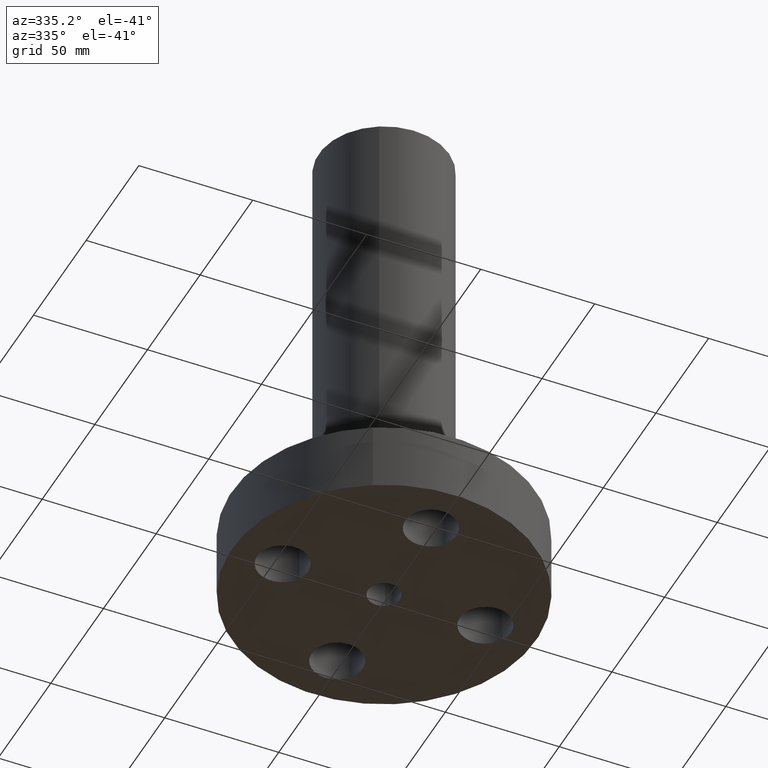
[diagram: clean part render]
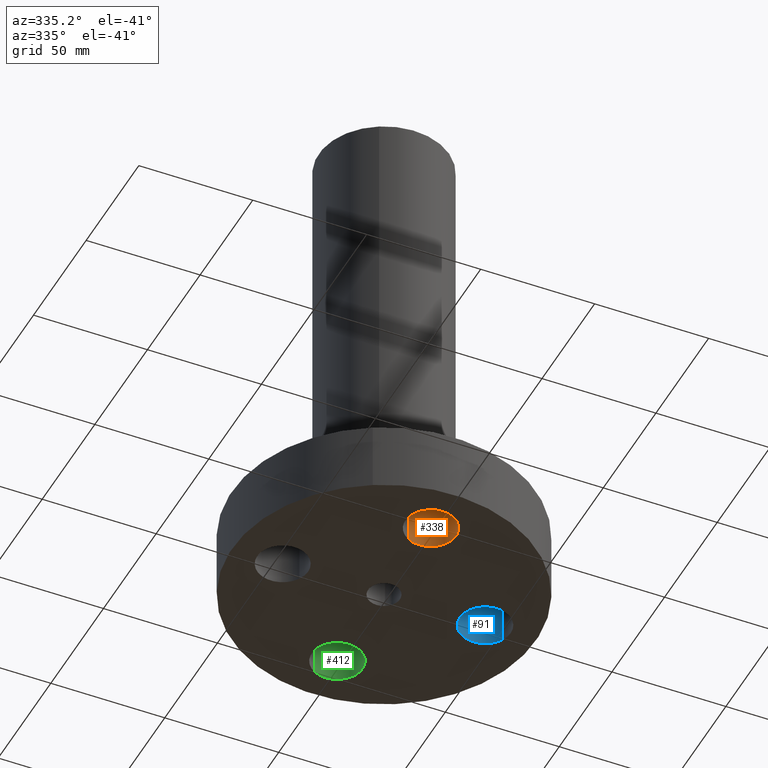
[diagram: same view with three faces highlighted in distinct colors, each labeled with its STEP entity id]
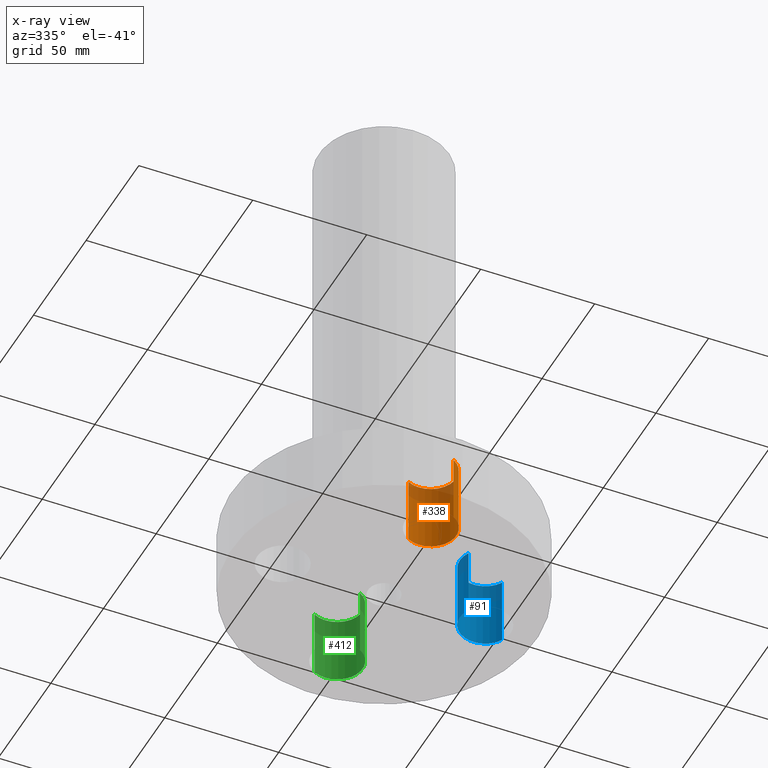
[diagram: x-ray of the same camera — body ghosted, the three highlighted faces saturated]
A machine part, auxiliary view with three faces highlighted in distinct colors.
The next image is the same camera in x-ray (body ghosted, the three faces saturated) — at least one of them is partly hidden behind the body in this view.
Their STEP definitions:

[orange] entity #338 — the highlighted cylindrical surface (edge-blend (fillet) strip) has radius 11.176 mm, axis along (-0, 0, 1).
#139=AXIS2_PLACEMENT_3D('Circle Axis2P3D',#137,#138,$) ;
#299=AXIS2_PLACEMENT_3D('Cylinder Axis2P3D',#296,#297,#298) ;
#329=AXIS2_PLACEMENT_3D('Circle Axis2P3D',#327,#328,$) ;
#137=CARTESIAN_POINT('Axis2P3D Location',(-3.84644197508E-016,-1.75000000001,1.19)) ;
#141=CARTESIAN_POINT('Vertex',(-0.210947236987,-1.36386367277,1.19)) ;
#143=CARTESIAN_POINT('Vertex',(0.210947236987,-2.13613632724,1.19)) ;
#296=CARTESIAN_POINT('Axis2P3D Location',(-1.72584639625E-016,-1.75000000001,0.00393700787402)) ;
#301=CARTESIAN_POINT('Line Origine',(-0.210947236987,-1.36386367277,0.595000000002)) ;
#305=CARTESIAN_POINT('Vertex',(-0.210947236987,-1.36386367277,2.2401153548E-016)) ;
#308=CARTESIAN_POINT('Line Origine',(0.210947236987,-2.13613632724,0.595000000002)) ;
#312=CARTESIAN_POINT('Vertex',(0.210947236987,-2.13613632724,2.2401153548E-016)) ;
#327=CARTESIAN_POINT('Axis2P3D Location',(-1.72584639625E-016,-1.75000000001,0.)) ;
#138=DIRECTION('Axis2P3D Direction',(0.,0.,-0.0393700787402)) ;
#297=DIRECTION('Axis2P3D Direction',(-0.,0.,0.0393700787402)) ;
#298=DIRECTION('Axis2P3D XDirection',(0.0188750212049,-0.0345504945626,0.)) ;
#302=DIRECTION('Vector Direction',(0.,0.,0.0393700787402)) ;
#309=DIRECTION('Vector Direction',(0.,0.,0.0393700787402)) ;
#328=DIRECTION('Axis2P3D Direction',(-0.,0.,0.0393700787402)) ;
#303=VECTOR('Line Direction',#302,0.0393700787402) ;
#310=VECTOR('Line Direction',#309,0.0393700787402) ;
#333=ORIENTED_EDGE('',*,*,#314,.F.) ;
#334=ORIENTED_EDGE('',*,*,#145,.F.) ;
#335=ORIENTED_EDGE('',*,*,#307,.T.) ;
#336=ORIENTED_EDGE('',*,*,#331,.T.) ;
#338=ADVANCED_FACE('PartBody',(#337),#300,.F.) ;
#140=CIRCLE('generated circle',#139,0.440000000002) ;
#330=CIRCLE('generated circle',#329,0.440000000002) ;
#300=CYLINDRICAL_SURFACE('generated cylinder',#299,0.440000000002) ;
#145=EDGE_CURVE('',#142,#144,#140,.T.) ;
#307=EDGE_CURVE('',#142,#306,#304,.F.) ;
#314=EDGE_CURVE('',#144,#313,#311,.F.) ;
#331=EDGE_CURVE('',#306,#313,#330,.F.) ;
#332=EDGE_LOOP('',(#333,#334,#335,#336)) ;
#337=FACE_OUTER_BOUND('',#332,.T.) ;
#304=LINE('Line',#301,#303) ;
#311=LINE('Line',#308,#310) ;
#142=VERTEX_POINT('',#141) ;
#144=VERTEX_POINT('',#143) ;
#306=VERTEX_POINT('',#305) ;
#313=VERTEX_POINT('',#312) ;

[blue] entity #91 — the highlighted cylindrical surface (edge-blend (fillet) strip) has radius 11.176 mm, axis along (0, -0, 1).
#38=AXIS2_PLACEMENT_3D('Cylinder Axis2P3D',#35,#36,#37) ;
#77=AXIS2_PLACEMENT_3D('Circle Axis2P3D',#75,#76,$) ;
#82=AXIS2_PLACEMENT_3D('Circle Axis2P3D',#80,#81,$) ;
#35=CARTESIAN_POINT('Axis2P3D Location',(1.75000000001,0.,0.00393700787402)) ;
#40=CARTESIAN_POINT('Line Origine',(1.36386367277,-0.210947236987,0.595000000002)) ;
#44=CARTESIAN_POINT('Vertex',(1.36386367277,-0.210947236987,1.19)) ;
#46=CARTESIAN_POINT('Vertex',(1.36386367277,-0.210947236987,2.2401153548E-016)) ;
#53=CARTESIAN_POINT('Vertex',(2.13613632724,0.210947236987,1.19)) ;
#56=CARTESIAN_POINT('Line Origine',(2.13613632724,0.210947236987,0.595000000002)) ;
#60=CARTESIAN_POINT('Vertex',(2.13613632724,0.210947236987,2.2401153548E-016)) ;
#75=CARTESIAN_POINT('Axis2P3D Location',(1.75000000001,0.,1.19)) ;
#80=CARTESIAN_POINT('Axis2P3D Location',(1.75000000001,0.,0.)) ;
#36=DIRECTION('Axis2P3D Direction',(0.,-0.,0.0393700787402)) ;
#37=DIRECTION('Axis2P3D XDirection',(0.0345504945626,0.0188750212049,0.)) ;
#41=DIRECTION('Vector Direction',(0.,0.,0.0393700787402)) ;
#57=DIRECTION('Vector Direction',(0.,0.,0.0393700787402)) ;
#76=DIRECTION('Axis2P3D Direction',(0.,-0.,0.0393700787402)) ;
#81=DIRECTION('Axis2P3D Direction',(0.,-0.,0.0393700787402)) ;
#42=VECTOR('Line Direction',#41,0.0393700787402) ;
#58=VECTOR('Line Direction',#57,0.0393700787402) ;
#86=ORIENTED_EDGE('',*,*,#62,.F.) ;
#87=ORIENTED_EDGE('',*,*,#79,.F.) ;
#88=ORIENTED_EDGE('',*,*,#48,.T.) ;
#89=ORIENTED_EDGE('',*,*,#84,.T.) ;
#91=ADVANCED_FACE('PartBody',(#90),#39,.F.) ;
#78=CIRCLE('generated circle',#77,0.440000000002) ;
#83=CIRCLE('generated circle',#82,0.440000000002) ;
#39=CYLINDRICAL_SURFACE('generated cylinder',#38,0.440000000002) ;
#48=EDGE_CURVE('',#45,#47,#43,.F.) ;
#62=EDGE_CURVE('',#54,#61,#59,.F.) ;
#79=EDGE_CURVE('',#45,#54,#78,.F.) ;
#84=EDGE_CURVE('',#47,#61,#83,.F.) ;
#85=EDGE_LOOP('',(#86,#87,#88,#89)) ;
#90=FACE_OUTER_BOUND('',#85,.T.) ;
#43=LINE('Line',#40,#42) ;
#59=LINE('Line',#56,#58) ;
#45=VERTEX_POINT('',#44) ;
#47=VERTEX_POINT('',#46) ;
#54=VERTEX_POINT('',#53) ;
#61=VERTEX_POINT('',#60) ;

[green] entity #412 — the highlighted cylindrical surface (edge-blend (fillet) strip) has radius 11.176 mm, axis along (0, 0, 1).
#184=AXIS2_PLACEMENT_3D('Circle Axis2P3D',#182,#183,$) ;
#385=AXIS2_PLACEMENT_3D('Cylinder Axis2P3D',#382,#383,#384) ;
#403=AXIS2_PLACEMENT_3D('Circle Axis2P3D',#401,#402,$) ;
#177=CARTESIAN_POINT('Vertex',(0.210947236987,1.36386367277,1.19)) ;
#179=CARTESIAN_POINT('Vertex',(-0.210947236987,2.13613632724,1.19)) ;
#182=CARTESIAN_POINT('Axis2P3D Location',(-4.89547160465E-016,1.75000000001,1.19)) ;
#382=CARTESIAN_POINT('Axis2P3D Location',(-3.21469784777E-016,1.75000000001,0.00393700787402)) ;
#387=CARTESIAN_POINT('Line Origine',(0.210947236987,1.36386367277,0.595000000002)) ;
#391=CARTESIAN_POINT('Vertex',(0.210947236987,1.36386367277,2.2401153548E-016)) ;
#394=CARTESIAN_POINT('Line Origine',(-0.210947236987,2.13613632724,0.595000000002)) ;
#398=CARTESIAN_POINT('Vertex',(-0.210947236987,2.13613632724,2.2401153548E-016)) ;
#401=CARTESIAN_POINT('Axis2P3D Location',(-3.21469784777E-016,1.75000000001,0.)) ;
#183=DIRECTION('Axis2P3D Direction',(0.,0.,-0.0393700787402)) ;
#383=DIRECTION('Axis2P3D Direction',(0.,0.,0.0393700787402)) ;
#384=DIRECTION('Axis2P3D XDirection',(-0.0188750212049,0.0345504945626,0.)) ;
#388=DIRECTION('Vector Direction',(0.,0.,0.0393700787402)) ;
#395=DIRECTION('Vector Direction',(0.,0.,0.0393700787402)) ;
#402=DIRECTION('Axis2P3D Direction',(0.,0.,0.0393700787402)) ;
#389=VECTOR('Line Direction',#388,0.0393700787402) ;
#396=VECTOR('Line Direction',#395,0.0393700787402) ;
#407=ORIENTED_EDGE('',*,*,#393,.F.) ;
#408=ORIENTED_EDGE('',*,*,#186,.F.) ;
#409=ORIENTED_EDGE('',*,*,#400,.T.) ;
#410=ORIENTED_EDGE('',*,*,#405,.T.) ;
#412=ADVANCED_FACE('PartBody',(#411),#386,.F.) ;
#185=CIRCLE('generated circle',#184,0.440000000002) ;
#404=CIRCLE('generated circle',#403,0.440000000002) ;
#386=CYLINDRICAL_SURFACE('generated cylinder',#385,0.440000000002) ;
#186=EDGE_CURVE('',#180,#178,#185,.T.) ;
#393=EDGE_CURVE('',#178,#392,#390,.F.) ;
#400=EDGE_CURVE('',#180,#399,#397,.F.) ;
#405=EDGE_CURVE('',#399,#392,#404,.F.) ;
#406=EDGE_LOOP('',(#407,#408,#409,#410)) ;
#411=FACE_OUTER_BOUND('',#406,.T.) ;
#390=LINE('Line',#387,#389) ;
#397=LINE('Line',#394,#396) ;
#178=VERTEX_POINT('',#177) ;
#180=VERTEX_POINT('',#179) ;
#392=VERTEX_POINT('',#391) ;
#399=VERTEX_POINT('',#398) ;